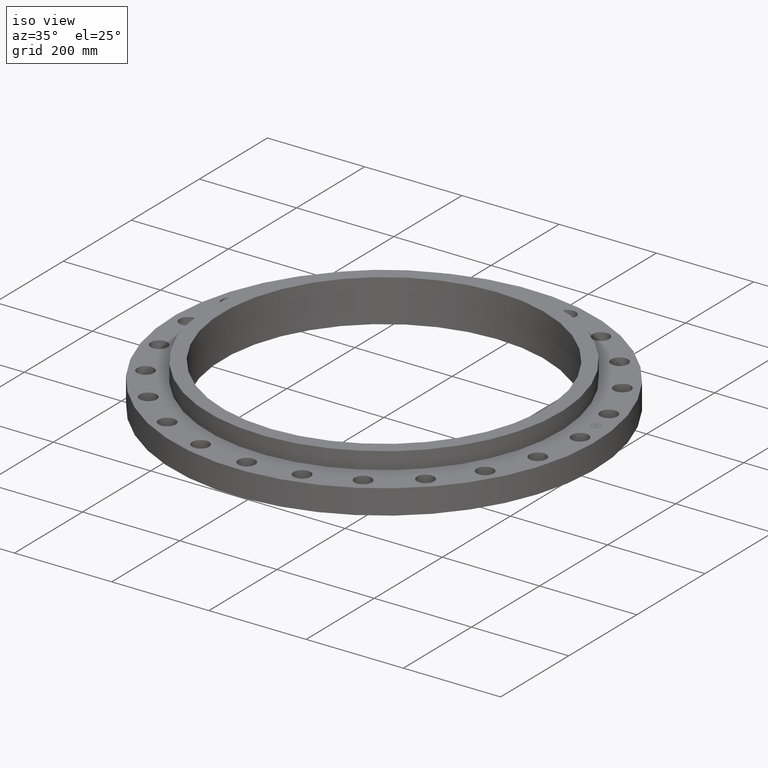
[diagram: clean part render]
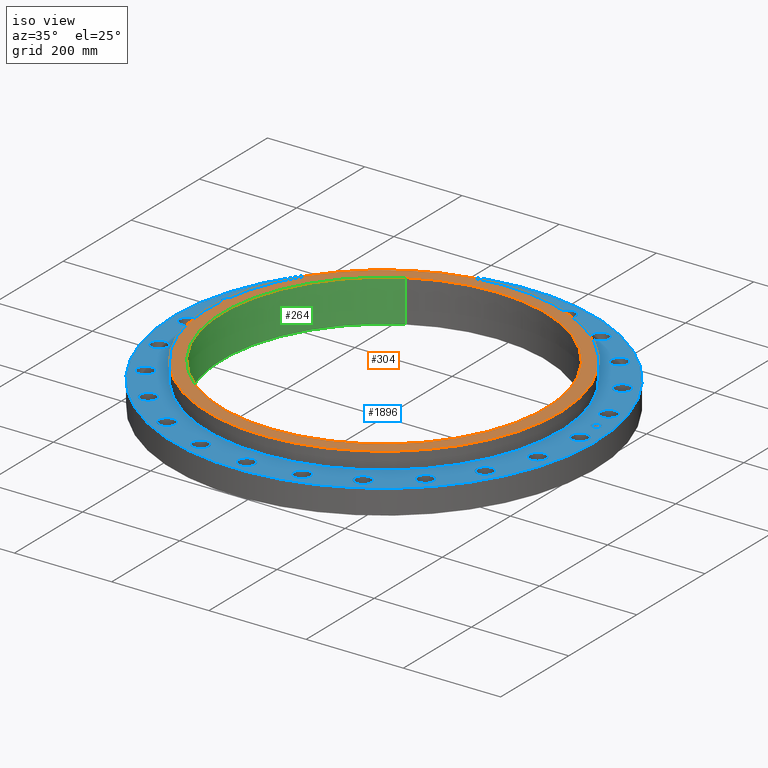
[diagram: same view with three faces highlighted in distinct colors, each labeled with its STEP entity id]
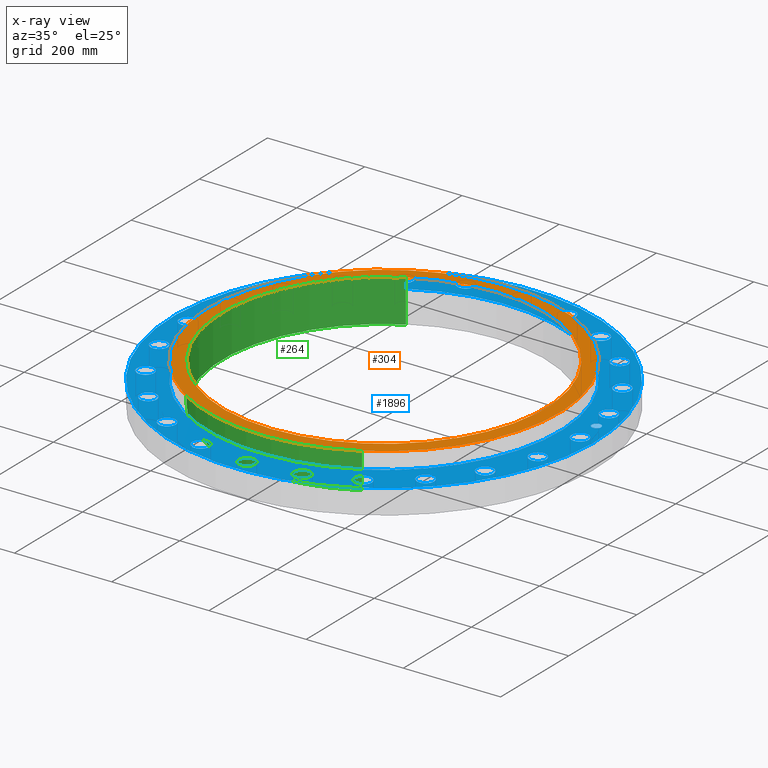
[diagram: x-ray of the same camera — body ghosted, the three highlighted faces saturated]
A machine part, iso view with three faces highlighted in distinct colors.
The next image is the same camera in x-ray (body ghosted, the three faces saturated) — at least one of them is partly hidden behind the body in this view.
Their STEP definitions:

[orange] entity #304 — the highlighted planar face has unit normal (0, 0, 1).
#255=AXIS2_PLACEMENT_3D('Circle Axis2P3D',#253,#254,$) ;
#267=AXIS2_PLACEMENT_3D('Circle Axis2P3D',#265,#266,$) ;
#280=AXIS2_PLACEMENT_3D('Plane Axis2P3D',#277,#278,#279) ;
#284=AXIS2_PLACEMENT_3D('Circle Axis2P3D',#282,#283,$) ;
#293=AXIS2_PLACEMENT_3D('Circle Axis2P3D',#291,#292,$) ;
#243=CARTESIAN_POINT('Vertex',(6.27807742805,-11.491943648,3.37500000001)) ;
#250=CARTESIAN_POINT('Vertex',(-6.27807742805,11.491943648,3.37500000001)) ;
#253=CARTESIAN_POINT('Axis2P3D Location',(0.,0.,3.37500000001)) ;
#265=CARTESIAN_POINT('Axis2P3D Location',(0.,0.,3.37500000001)) ;
#277=CARTESIAN_POINT('Axis2P3D Location',(0.,13.0950000001,3.37500000001)) ;
#282=CARTESIAN_POINT('Axis2P3D Location',(0.,0.,3.37500000001)) ;
#286=CARTESIAN_POINT('Vertex',(6.83181392514,-12.505551507,3.37500000001)) ;
#288=CARTESIAN_POINT('Vertex',(-6.83181392514,12.505551507,3.37500000001)) ;
#291=CARTESIAN_POINT('Axis2P3D Location',(0.,0.,3.37500000001)) ;
#254=DIRECTION('Axis2P3D Direction',(0.,0.,0.0393700787402)) ;
#266=DIRECTION('Axis2P3D Direction',(0.,0.,0.0393700787402)) ;
#278=DIRECTION('Axis2P3D Direction',(0.,0.,0.0393700787402)) ;
#279=DIRECTION('Axis2P3D XDirection',(0.0393700787402,0.,0.)) ;
#283=DIRECTION('Axis2P3D Direction',(0.,0.,0.0393700787402)) ;
#292=DIRECTION('Axis2P3D Direction',(0.,0.,0.0393700787402)) ;
#297=ORIENTED_EDGE('',*,*,#290,.T.) ;
#298=ORIENTED_EDGE('',*,*,#295,.T.) ;
#301=ORIENTED_EDGE('',*,*,#257,.F.) ;
#302=ORIENTED_EDGE('',*,*,#269,.F.) ;
#303=FACE_BOUND('',#300,.T.) ;
#304=ADVANCED_FACE('PartBody',(#299,#303),#281,.T.) ;
#256=CIRCLE('generated circle',#255,13.0950000001) ;
#268=CIRCLE('generated circle',#267,13.0950000001) ;
#285=CIRCLE('generated circle',#284,14.2500000001) ;
#294=CIRCLE('generated circle',#293,14.2500000001) ;
#257=EDGE_CURVE('',#251,#244,#256,.T.) ;
#269=EDGE_CURVE('',#244,#251,#268,.T.) ;
#290=EDGE_CURVE('',#287,#289,#285,.T.) ;
#295=EDGE_CURVE('',#289,#287,#294,.T.) ;
#296=EDGE_LOOP('',(#297,#298)) ;
#300=EDGE_LOOP('',(#301,#302)) ;
#299=FACE_OUTER_BOUND('',#296,.T.) ;
#281=PLANE('',#280) ;
#244=VERTEX_POINT('',#243) ;
#251=VERTEX_POINT('',#250) ;
#287=VERTEX_POINT('',#286) ;
#289=VERTEX_POINT('',#288) ;

[blue] entity #1896 — the highlighted planar face has unit normal (0, 0, 1).
#65=AXIS2_PLACEMENT_3D('Circle Axis2P3D',#63,#64,$) ;
#82=AXIS2_PLACEMENT_3D('Circle Axis2P3D',#80,#81,$) ;
#108=AXIS2_PLACEMENT_3D('Circle Axis2P3D',#106,#107,$) ;
#134=AXIS2_PLACEMENT_3D('Circle Axis2P3D',#132,#133,$) ;
#326=AXIS2_PLACEMENT_3D('Circle Axis2P3D',#324,#325,$) ;
#338=AXIS2_PLACEMENT_3D('Circle Axis2P3D',#336,#337,$) ;
#801=AXIS2_PLACEMENT_3D('Circle Axis2P3D',#799,#800,$) ;
#813=AXIS2_PLACEMENT_3D('Circle Axis2P3D',#811,#812,$) ;
#844=AXIS2_PLACEMENT_3D('Circle Axis2P3D',#842,#843,$) ;
#856=AXIS2_PLACEMENT_3D('Circle Axis2P3D',#854,#855,$) ;
#887=AXIS2_PLACEMENT_3D('Circle Axis2P3D',#885,#886,$) ;
#899=AXIS2_PLACEMENT_3D('Circle Axis2P3D',#897,#898,$) ;
#930=AXIS2_PLACEMENT_3D('Circle Axis2P3D',#928,#929,$) ;
#942=AXIS2_PLACEMENT_3D('Circle Axis2P3D',#940,#941,$) ;
#973=AXIS2_PLACEMENT_3D('Circle Axis2P3D',#971,#972,$) ;
#985=AXIS2_PLACEMENT_3D('Circle Axis2P3D',#983,#984,$) ;
#1016=AXIS2_PLACEMENT_3D('Circle Axis2P3D',#1014,#1015,$) ;
#1028=AXIS2_PLACEMENT_3D('Circle Axis2P3D',#1026,#1027,$) ;
#1059=AXIS2_PLACEMENT_3D('Circle Axis2P3D',#1057,#1058,$) ;
#1071=AXIS2_PLACEMENT_3D('Circle Axis2P3D',#1069,#1070,$) ;
#1102=AXIS2_PLACEMENT_3D('Circle Axis2P3D',#1100,#1101,$) ;
#1114=AXIS2_PLACEMENT_3D('Circle Axis2P3D',#1112,#1113,$) ;
#1145=AXIS2_PLACEMENT_3D('Circle Axis2P3D',#1143,#1144,$) ;
#1157=AXIS2_PLACEMENT_3D('Circle Axis2P3D',#1155,#1156,$) ;
#1188=AXIS2_PLACEMENT_3D('Circle Axis2P3D',#1186,#1187,$) ;
#1200=AXIS2_PLACEMENT_3D('Circle Axis2P3D',#1198,#1199,$) ;
#1231=AXIS2_PLACEMENT_3D('Circle Axis2P3D',#1229,#1230,$) ;
#1243=AXIS2_PLACEMENT_3D('Circle Axis2P3D',#1241,#1242,$) ;
#1274=AXIS2_PLACEMENT_3D('Circle Axis2P3D',#1272,#1273,$) ;
#1286=AXIS2_PLACEMENT_3D('Circle Axis2P3D',#1284,#1285,$) ;
#1317=AXIS2_PLACEMENT_3D('Circle Axis2P3D',#1315,#1316,$) ;
#1329=AXIS2_PLACEMENT_3D('Circle Axis2P3D',#1327,#1328,$) ;
#1360=AXIS2_PLACEMENT_3D('Circle Axis2P3D',#1358,#1359,$) ;
#1372=AXIS2_PLACEMENT_3D('Circle Axis2P3D',#1370,#1371,$) ;
#1403=AXIS2_PLACEMENT_3D('Circle Axis2P3D',#1401,#1402,$) ;
#1415=AXIS2_PLACEMENT_3D('Circle Axis2P3D',#1413,#1414,$) ;
#1446=AXIS2_PLACEMENT_3D('Circle Axis2P3D',#1444,#1445,$) ;
#1458=AXIS2_PLACEMENT_3D('Circle Axis2P3D',#1456,#1457,$) ;
#1489=AXIS2_PLACEMENT_3D('Circle Axis2P3D',#1487,#1488,$) ;
#1501=AXIS2_PLACEMENT_3D('Circle Axis2P3D',#1499,#1500,$) ;
#1532=AXIS2_PLACEMENT_3D('Circle Axis2P3D',#1530,#1531,$) ;
#1544=AXIS2_PLACEMENT_3D('Circle Axis2P3D',#1542,#1543,$) ;
#1575=AXIS2_PLACEMENT_3D('Circle Axis2P3D',#1573,#1574,$) ;
#1587=AXIS2_PLACEMENT_3D('Circle Axis2P3D',#1585,#1586,$) ;
#1618=AXIS2_PLACEMENT_3D('Circle Axis2P3D',#1616,#1617,$) ;
#1630=AXIS2_PLACEMENT_3D('Circle Axis2P3D',#1628,#1629,$) ;
#1661=AXIS2_PLACEMENT_3D('Circle Axis2P3D',#1659,#1660,$) ;
#1673=AXIS2_PLACEMENT_3D('Circle Axis2P3D',#1671,#1672,$) ;
#1704=AXIS2_PLACEMENT_3D('Circle Axis2P3D',#1702,#1703,$) ;
#1716=AXIS2_PLACEMENT_3D('Circle Axis2P3D',#1714,#1715,$) ;
#1747=AXIS2_PLACEMENT_3D('Circle Axis2P3D',#1745,#1746,$) ;
#1759=AXIS2_PLACEMENT_3D('Circle Axis2P3D',#1757,#1758,$) ;
#1772=AXIS2_PLACEMENT_3D('Plane Axis2P3D',#1769,#1770,#1771) ;
#1880=AXIS2_PLACEMENT_3D('Circle Axis2P3D',#1878,#1879,$) ;
#1889=AXIS2_PLACEMENT_3D('Circle Axis2P3D',#1887,#1888,$) ;
#46=CARTESIAN_POINT('Vertex',(15.2716619888,0.329605057792,2.00000000001)) ;
#60=CARTESIAN_POINT('Vertex',(16.4783380114,-0.329605057792,2.00000000001)) ;
#63=CARTESIAN_POINT('Axis2P3D Location',(15.8750000001,0.,2.00000000001)) ;
#80=CARTESIAN_POINT('Axis2P3D Location',(15.8750000001,0.,2.00000000001)) ;
#103=CARTESIAN_POINT('Vertex',(-8.21016234863,15.0286013724,2.00000000001)) ;
#106=CARTESIAN_POINT('Axis2P3D Location',(0.,0.,2.00000000001)) ;
#110=CARTESIAN_POINT('Vertex',(8.21016234863,-15.0286013724,2.00000000001)) ;
#132=CARTESIAN_POINT('Axis2P3D Location',(0.,0.,2.00000000001)) ;
#314=CARTESIAN_POINT('Vertex',(-6.83181392514,12.505551507,2.00000000001)) ;
#321=CARTESIAN_POINT('Vertex',(6.83181392514,-12.505551507,2.00000000001)) ;
#324=CARTESIAN_POINT('Axis2P3D Location',(0.,0.,2.00000000001)) ;
#336=CARTESIAN_POINT('Axis2P3D Location',(0.,0.,2.00000000001)) ;
#789=CARTESIAN_POINT('Vertex',(14.665984659,4.27097101086,2.00000000001)) ;
#796=CARTESIAN_POINT('Vertex',(16.0021603258,3.94653367118,2.00000000001)) ;
#799=CARTESIAN_POINT('Axis2P3D Location',(15.3340724924,4.10875234102,2.00000000001)) ;
#811=CARTESIAN_POINT('Axis2P3D Location',(15.3340724924,4.10875234102,2.00000000001)) ;
#832=CARTESIAN_POINT('Vertex',(13.0608447114,7.92127734764,2.00000000001)) ;
#839=CARTESIAN_POINT('Vertex',(14.4354618589,7.95372265242,2.00000000001)) ;
#842=CARTESIAN_POINT('Axis2P3D Location',(13.7481532851,7.93750000003,2.00000000001)) ;
#854=CARTESIAN_POINT('Axis2P3D Location',(13.7481532851,7.93750000003,2.00000000001)) ;
#875=CARTESIAN_POINT('Vertex',(10.5656297808,11.0317617237,2.00000000001)) ;
#882=CARTESIAN_POINT('Vertex',(11.885010522,11.418878579,2.00000000001)) ;
#885=CARTESIAN_POINT('Axis2P3D Location',(11.2253201514,11.2253201514,2.00000000001)) ;
#897=CARTESIAN_POINT('Axis2P3D Location',(11.2253201514,11.2253201514,2.00000000001)) ;
#918=CARTESIAN_POINT('Vertex',(7.35038464112,13.3904497692,2.00000000001)) ;
#925=CARTESIAN_POINT('Vertex',(8.52461535895,14.1058568011,2.00000000001)) ;
#928=CARTESIAN_POINT('Axis2P3D Location',(7.93750000003,13.7481532851,2.00000000001)) ;
#940=CARTESIAN_POINT('Axis2P3D Location',(7.93750000003,13.7481532851,2.00000000001)) ;
#961=CARTESIAN_POINT('Vertex',(3.63422293526,14.8366007916,2.00000000001)) ;
#968=CARTESIAN_POINT('Vertex',(4.58328174677,15.8315441932,2.00000000001)) ;
#971=CARTESIAN_POINT('Axis2P3D Location',(4.10875234102,15.3340724924,2.00000000001)) ;
#983=CARTESIAN_POINT('Axis2P3D Location',(4.10875234102,15.3340724924,2.00000000001)) ;
#1004=CARTESIAN_POINT('Vertex',(-0.329605057792,15.2716619888,2.00000000001)) ;
#1011=CARTESIAN_POINT('Vertex',(0.329605057792,16.4783380114,2.00000000001)) ;
#1014=CARTESIAN_POINT('Axis2P3D Location',(9.72063396827E-016,15.8750000001,2.00000000001)) ;
#1026=CARTESIAN_POINT('Axis2P3D Location',(9.72063396827E-016,15.8750000001,2.00000000001)) ;
#1047=CARTESIAN_POINT('Vertex',(-4.27097101086,14.665984659,2.00000000001)) ;
#1054=CARTESIAN_POINT('Vertex',(-3.94653367118,16.0021603258,2.00000000001)) ;
#1057=CARTESIAN_POINT('Axis2P3D Location',(-4.10875234102,15.3340724924,2.00000000001)) ;
#1069=CARTESIAN_POINT('Axis2P3D Location',(-4.10875234102,15.3340724924,2.00000000001)) ;
#1090=CARTESIAN_POINT('Vertex',(-7.92127734764,13.0608447114,2.00000000001)) ;
#1097=CARTESIAN_POINT('Vertex',(-7.95372265242,14.4354618589,2.00000000001)) ;
#1100=CARTESIAN_POINT('Axis2P3D Location',(-7.93750000003,13.7481532851,2.00000000001)) ;
#1112=CARTESIAN_POINT('Axis2P3D Location',(-7.93750000003,13.7481532851,2.00000000001)) ;
#1133=CARTESIAN_POINT('Vertex',(-11.0317617237,10.5656297808,2.00000000001)) ;
#1140=CARTESIAN_POINT('Vertex',(-11.418878579,11.885010522,2.00000000001)) ;
#1143=CARTESIAN_POINT('Axis2P3D Location',(-11.2253201514,11.2253201514,2.00000000001)) ;
#1155=CARTESIAN_POINT('Axis2P3D Location',(-11.2253201514,11.2253201514,2.00000000001)) ;
#1176=CARTESIAN_POINT('Vertex',(-13.3904497692,7.35038464112,2.00000000001)) ;
#1183=CARTESIAN_POINT('Vertex',(-14.1058568011,8.52461535895,2.00000000001)) ;
#1186=CARTESIAN_POINT('Axis2P3D Location',(-13.7481532851,7.93750000003,2.00000000001)) ;
#1198=CARTESIAN_POINT('Axis2P3D Location',(-13.7481532851,7.93750000003,2.00000000001)) ;
#1219=CARTESIAN_POINT('Vertex',(-14.8366007916,3.63422293526,2.00000000001)) ;
#1226=CARTESIAN_POINT('Vertex',(-15.8315441932,4.58328174677,2.00000000001)) ;
#1229=CARTESIAN_POINT('Axis2P3D Location',(-15.3340724924,4.10875234102,2.00000000001)) ;
#1241=CARTESIAN_POINT('Axis2P3D Location',(-15.3340724924,4.10875234102,2.00000000001)) ;
#1262=CARTESIAN_POINT('Vertex',(-15.2716619888,-0.329605057792,2.00000000001)) ;
#1269=CARTESIAN_POINT('Vertex',(-16.4783380114,0.329605057792,2.00000000001)) ;
#1272=CARTESIAN_POINT('Axis2P3D Location',(-15.8750000001,1.94412679365E-015,2.00000000001)) ;
#1284=CARTESIAN_POINT('Axis2P3D Location',(-15.8750000001,1.94412679365E-015,2.00000000001)) ;
#1305=CARTESIAN_POINT('Vertex',(-14.665984659,-4.27097101086,2.00000000001)) ;
#1312=CARTESIAN_POINT('Vertex',(-16.0021603258,-3.94653367118,2.00000000001)) ;
#1315=CARTESIAN_POINT('Axis2P3D Location',(-15.3340724924,-4.10875234102,2.00000000001)) ;
#1327=CARTESIAN_POINT('Axis2P3D Location',(-15.3340724924,-4.10875234102,2.00000000001)) ;
#1348=CARTESIAN_POINT('Vertex',(-13.0608447114,-7.92127734764,2.00000000001)) ;
#1355=CARTESIAN_POINT('Vertex',(-14.4354618589,-7.95372265242,2.00000000001)) ;
#1358=CARTESIAN_POINT('Axis2P3D Location',(-13.7481532851,-7.93750000003,2.00000000001)) ;
#1370=CARTESIAN_POINT('Axis2P3D Location',(-13.7481532851,-7.93750000003,2.00000000001)) ;
#1391=CARTESIAN_POINT('Vertex',(-10.5656297808,-11.0317617237,2.00000000001)) ;
#1398=CARTESIAN_POINT('Vertex',(-11.885010522,-11.418878579,2.00000000001)) ;
#1401=CARTESIAN_POINT('Axis2P3D Location',(-11.2253201514,-11.2253201514,2.00000000001)) ;
#1413=CARTESIAN_POINT('Axis2P3D Location',(-11.2253201514,-11.2253201514,2.00000000001)) ;
#1434=CARTESIAN_POINT('Vertex',(-7.35038464112,-13.3904497692,2.00000000001)) ;
#1441=CARTESIAN_POINT('Vertex',(-8.52461535895,-14.1058568011,2.00000000001)) ;
#1444=CARTESIAN_POINT('Axis2P3D Location',(-7.93750000003,-13.7481532851,2.00000000001)) ;
#1456=CARTESIAN_POINT('Axis2P3D Location',(-7.93750000003,-13.7481532851,2.00000000001)) ;
#1477=CARTESIAN_POINT('Vertex',(-3.63422293526,-14.8366007916,2.00000000001)) ;
#1484=CARTESIAN_POINT('Vertex',(-4.58328174677,-15.8315441932,2.00000000001)) ;
#1487=CARTESIAN_POINT('Axis2P3D Location',(-4.10875234102,-15.3340724924,2.00000000001)) ;
#1499=CARTESIAN_POINT('Axis2P3D Location',(-4.10875234102,-15.3340724924,2.00000000001)) ;
#1520=CARTESIAN_POINT('Vertex',(0.329605057792,-15.2716619888,2.00000000001)) ;
#1527=CARTESIAN_POINT('Vertex',(-0.329605057792,-16.4783380114,2.00000000001)) ;
#1530=CARTESIAN_POINT('Axis2P3D Location',(-6.78260314072E-016,-15.8750000001,2.00000000001)) ;
#1542=CARTESIAN_POINT('Axis2P3D Location',(-6.78260314072E-016,-15.8750000001,2.00000000001)) ;
#1563=CARTESIAN_POINT('Vertex',(4.27097101086,-14.665984659,2.00000000001)) ;
#1570=CARTESIAN_POINT('Vertex',(3.94653367118,-16.0021603258,2.00000000001)) ;
#1573=CARTESIAN_POINT('Axis2P3D Location',(4.10875234102,-15.3340724924,2.00000000001)) ;
#1585=CARTESIAN_POINT('Axis2P3D Location',(4.10875234102,-15.3340724924,2.00000000001)) ;
#1606=CARTESIAN_POINT('Vertex',(7.92127734764,-13.0608447114,2.00000000001)) ;
#1613=CARTESIAN_POINT('Vertex',(7.95372265242,-14.4354618589,2.00000000001)) ;
#1616=CARTESIAN_POINT('Axis2P3D Location',(7.93750000003,-13.7481532851,2.00000000001)) ;
#1628=CARTESIAN_POINT('Axis2P3D Location',(7.93750000003,-13.7481532851,2.00000000001)) ;
#1649=CARTESIAN_POINT('Vertex',(11.0317617237,-10.5656297808,2.00000000001)) ;
#1656=CARTESIAN_POINT('Vertex',(11.418878579,-11.885010522,2.00000000001)) ;
#1659=CARTESIAN_POINT('Axis2P3D Location',(11.2253201514,-11.2253201514,2.00000000001)) ;
#1671=CARTESIAN_POINT('Axis2P3D Location',(11.2253201514,-11.2253201514,2.00000000001)) ;
#1692=CARTESIAN_POINT('Vertex',(13.3904497692,-7.35038464112,2.00000000001)) ;
#1699=CARTESIAN_POINT('Vertex',(14.1058568011,-8.52461535895,2.00000000001)) ;
#1702=CARTESIAN_POINT('Axis2P3D Location',(13.7481532851,-7.93750000003,2.00000000001)) ;
#1714=CARTESIAN_POINT('Axis2P3D Location',(13.7481532851,-7.93750000003,2.00000000001)) ;
#1735=CARTESIAN_POINT('Vertex',(14.8366007916,-3.63422293526,2.00000000001)) ;
#1742=CARTESIAN_POINT('Vertex',(15.8315441932,-4.58328174677,2.00000000001)) ;
#1745=CARTESIAN_POINT('Axis2P3D Location',(15.3340724924,-4.10875234102,2.00000000001)) ;
#1757=CARTESIAN_POINT('Axis2P3D Location',(15.3340724924,-4.10875234102,2.00000000001)) ;
#1769=CARTESIAN_POINT('Axis2P3D Location',(0.,14.2500000001,2.00000000001)) ;
#1878=CARTESIAN_POINT('Axis2P3D Location',(15.7391871744,2.0721033015,2.00000000001)) ;
#1882=CARTESIAN_POINT('Vertex',(15.6902398523,2.44389512452,2.00000000001)) ;
#1884=CARTESIAN_POINT('Vertex',(15.7881344965,1.70031147848,2.00000000001)) ;
#1887=CARTESIAN_POINT('Axis2P3D Location',(15.7391871744,2.0721033015,2.00000000001)) ;
#64=DIRECTION('Axis2P3D Direction',(0.,-0.,-0.0393700787402)) ;
#81=DIRECTION('Axis2P3D Direction',(0.,-0.,-0.0393700787402)) ;
#107=DIRECTION('Axis2P3D Direction',(0.,0.,0.0393700787402)) ;
#133=DIRECTION('Axis2P3D Direction',(0.,0.,0.0393700787402)) ;
#325=DIRECTION('Axis2P3D Direction',(0.,0.,0.0393700787402)) ;
#337=DIRECTION('Axis2P3D Direction',(0.,0.,0.0393700787402)) ;
#800=DIRECTION('Axis2P3D Direction',(0.,0.,-0.0393700787402)) ;
#812=DIRECTION('Axis2P3D Direction',(0.,0.,-0.0393700787402)) ;
#843=DIRECTION('Axis2P3D Direction',(0.,0.,-0.0393700787402)) ;
#855=DIRECTION('Axis2P3D Direction',(0.,0.,-0.0393700787402)) ;
#886=DIRECTION('Axis2P3D Direction',(0.,0.,-0.0393700787402)) ;
#898=DIRECTION('Axis2P3D Direction',(0.,0.,-0.0393700787402)) ;
#929=DIRECTION('Axis2P3D Direction',(0.,0.,-0.0393700787402)) ;
#941=DIRECTION('Axis2P3D Direction',(0.,0.,-0.0393700787402)) ;
#972=DIRECTION('Axis2P3D Direction',(0.,0.,-0.0393700787402)) ;
#984=DIRECTION('Axis2P3D Direction',(0.,0.,-0.0393700787402)) ;
#1015=DIRECTION('Axis2P3D Direction',(0.,0.,-0.0393700787402)) ;
#1027=DIRECTION('Axis2P3D Direction',(0.,0.,-0.0393700787402)) ;
#1058=DIRECTION('Axis2P3D Direction',(0.,0.,-0.0393700787402)) ;
#1070=DIRECTION('Axis2P3D Direction',(0.,0.,-0.0393700787402)) ;
#1101=DIRECTION('Axis2P3D Direction',(0.,0.,-0.0393700787402)) ;
#1113=DIRECTION('Axis2P3D Direction',(0.,0.,-0.0393700787402)) ;
#1144=DIRECTION('Axis2P3D Direction',(0.,0.,-0.0393700787402)) ;
#1156=DIRECTION('Axis2P3D Direction',(0.,0.,-0.0393700787402)) ;
#1187=DIRECTION('Axis2P3D Direction',(0.,0.,-0.0393700787402)) ;
#1199=DIRECTION('Axis2P3D Direction',(0.,0.,-0.0393700787402)) ;
#1230=DIRECTION('Axis2P3D Direction',(0.,0.,-0.0393700787402)) ;
#1242=DIRECTION('Axis2P3D Direction',(0.,0.,-0.0393700787402)) ;
#1273=DIRECTION('Axis2P3D Direction',(0.,0.,-0.0393700787402)) ;
#1285=DIRECTION('Axis2P3D Direction',(0.,0.,-0.0393700787402)) ;
#1316=DIRECTION('Axis2P3D Direction',(-0.,0.,-0.0393700787402)) ;
#1328=DIRECTION('Axis2P3D Direction',(-0.,0.,-0.0393700787402)) ;
#1359=DIRECTION('Axis2P3D Direction',(-0.,0.,-0.0393700787402)) ;
#1371=DIRECTION('Axis2P3D Direction',(-0.,0.,-0.0393700787402)) ;
#1402=DIRECTION('Axis2P3D Direction',(-0.,0.,-0.0393700787402)) ;
#1414=DIRECTION('Axis2P3D Direction',(-0.,0.,-0.0393700787402)) ;
#1445=DIRECTION('Axis2P3D Direction',(-0.,0.,-0.0393700787402)) ;
#1457=DIRECTION('Axis2P3D Direction',(-0.,0.,-0.0393700787402)) ;
#1488=DIRECTION('Axis2P3D Direction',(-0.,0.,-0.0393700787402)) ;
#1500=DIRECTION('Axis2P3D Direction',(-0.,0.,-0.0393700787402)) ;
#1531=DIRECTION('Axis2P3D Direction',(-0.,0.,-0.0393700787402)) ;
#1543=DIRECTION('Axis2P3D Direction',(-0.,0.,-0.0393700787402)) ;
#1574=DIRECTION('Axis2P3D Direction',(0.,-0.,-0.0393700787402)) ;
#1586=DIRECTION('Axis2P3D Direction',(0.,-0.,-0.0393700787402)) ;
#1617=DIRECTION('Axis2P3D Direction',(0.,-0.,-0.0393700787402)) ;
#1629=DIRECTION('Axis2P3D Direction',(0.,-0.,-0.0393700787402)) ;
#1660=DIRECTION('Axis2P3D Direction',(0.,-0.,-0.0393700787402)) ;
#1672=DIRECTION('Axis2P3D Direction',(0.,-0.,-0.0393700787402)) ;
#1703=DIRECTION('Axis2P3D Direction',(0.,-0.,-0.0393700787402)) ;
#1715=DIRECTION('Axis2P3D Direction',(0.,-0.,-0.0393700787402)) ;
#1746=DIRECTION('Axis2P3D Direction',(0.,-0.,-0.0393700787402)) ;
#1758=DIRECTION('Axis2P3D Direction',(0.,-0.,-0.0393700787402)) ;
#1770=DIRECTION('Axis2P3D Direction',(0.,0.,0.0393700787402)) ;
#1771=DIRECTION('Axis2P3D XDirection',(0.0393700787402,0.,0.)) ;
#1879=DIRECTION('Axis2P3D Direction',(0.,0.,0.0393700787402)) ;
#1888=DIRECTION('Axis2P3D Direction',(0.,0.,0.0393700787402)) ;
#1775=ORIENTED_EDGE('',*,*,#112,.T.) ;
#1776=ORIENTED_EDGE('',*,*,#136,.T.) ;
#1779=ORIENTED_EDGE('',*,*,#84,.F.) ;
#1780=ORIENTED_EDGE('',*,*,#67,.F.) ;
#1783=ORIENTED_EDGE('',*,*,#340,.F.) ;
#1784=ORIENTED_EDGE('',*,*,#328,.F.) ;
#1787=ORIENTED_EDGE('',*,*,#803,.F.) ;
#1788=ORIENTED_EDGE('',*,*,#815,.F.) ;
#1791=ORIENTED_EDGE('',*,*,#846,.F.) ;
#1792=ORIENTED_EDGE('',*,*,#858,.F.) ;
#1795=ORIENTED_EDGE('',*,*,#889,.F.) ;
#1796=ORIENTED_EDGE('',*,*,#901,.F.) ;
#1799=ORIENTED_EDGE('',*,*,#932,.F.) ;
#1800=ORIENTED_EDGE('',*,*,#944,.F.) ;
#1803=ORIENTED_EDGE('',*,*,#975,.F.) ;
#1804=ORIENTED_EDGE('',*,*,#987,.F.) ;
#1807=ORIENTED_EDGE('',*,*,#1018,.F.) ;
#1808=ORIENTED_EDGE('',*,*,#1030,.F.) ;
#1811=ORIENTED_EDGE('',*,*,#1061,.F.) ;
#1812=ORIENTED_EDGE('',*,*,#1073,.F.) ;
#1815=ORIENTED_EDGE('',*,*,#1104,.F.) ;
#1816=ORIENTED_EDGE('',*,*,#1116,.F.) ;
#1819=ORIENTED_EDGE('',*,*,#1147,.F.) ;
#1820=ORIENTED_EDGE('',*,*,#1159,.F.) ;
#1823=ORIENTED_EDGE('',*,*,#1190,.F.) ;
#1824=ORIENTED_EDGE('',*,*,#1202,.F.) ;
#1827=ORIENTED_EDGE('',*,*,#1233,.F.) ;
#1828=ORIENTED_EDGE('',*,*,#1245,.F.) ;
#1831=ORIENTED_EDGE('',*,*,#1276,.F.) ;
#1832=ORIENTED_EDGE('',*,*,#1288,.F.) ;
#1835=ORIENTED_EDGE('',*,*,#1319,.F.) ;
#1836=ORIENTED_EDGE('',*,*,#1331,.F.) ;
#1839=ORIENTED_EDGE('',*,*,#1362,.F.) ;
#1840=ORIENTED_EDGE('',*,*,#1374,.F.) ;
#1843=ORIENTED_EDGE('',*,*,#1405,.F.) ;
#1844=ORIENTED_EDGE('',*,*,#1417,.F.) ;
#1847=ORIENTED_EDGE('',*,*,#1448,.F.) ;
#1848=ORIENTED_EDGE('',*,*,#1460,.F.) ;
#1851=ORIENTED_EDGE('',*,*,#1491,.F.) ;
#1852=ORIENTED_EDGE('',*,*,#1503,.F.) ;
#1855=ORIENTED_EDGE('',*,*,#1534,.F.) ;
#1856=ORIENTED_EDGE('',*,*,#1546,.F.) ;
#1859=ORIENTED_EDGE('',*,*,#1577,.F.) ;
#1860=ORIENTED_EDGE('',*,*,#1589,.F.) ;
#1863=ORIENTED_EDGE('',*,*,#1620,.F.) ;
#1864=ORIENTED_EDGE('',*,*,#1632,.F.) ;
#1867=ORIENTED_EDGE('',*,*,#1663,.F.) ;
#1868=ORIENTED_EDGE('',*,*,#1675,.F.) ;
#1871=ORIENTED_EDGE('',*,*,#1706,.F.) ;
#1872=ORIENTED_EDGE('',*,*,#1718,.F.) ;
#1875=ORIENTED_EDGE('',*,*,#1749,.F.) ;
#1876=ORIENTED_EDGE('',*,*,#1761,.F.) ;
#1893=ORIENTED_EDGE('',*,*,#1886,.F.) ;
#1894=ORIENTED_EDGE('',*,*,#1891,.F.) ;
#1781=FACE_BOUND('',#1778,.T.) ;
#1785=FACE_BOUND('',#1782,.T.) ;
#1789=FACE_BOUND('',#1786,.T.) ;
#1793=FACE_BOUND('',#1790,.T.) ;
#1797=FACE_BOUND('',#1794,.T.) ;
#1801=FACE_BOUND('',#1798,.T.) ;
#1805=FACE_BOUND('',#1802,.T.) ;
#1809=FACE_BOUND('',#1806,.T.) ;
#1813=FACE_BOUND('',#1810,.T.) ;
#1817=FACE_BOUND('',#1814,.T.) ;
#1821=FACE_BOUND('',#1818,.T.) ;
#1825=FACE_BOUND('',#1822,.T.) ;
#1829=FACE_BOUND('',#1826,.T.) ;
#1833=FACE_BOUND('',#1830,.T.) ;
#1837=FACE_BOUND('',#1834,.T.) ;
#1841=FACE_BOUND('',#1838,.T.) ;
#1845=FACE_BOUND('',#1842,.T.) ;
#1849=FACE_BOUND('',#1846,.T.) ;
#1853=FACE_BOUND('',#1850,.T.) ;
#1857=FACE_BOUND('',#1854,.T.) ;
#1861=FACE_BOUND('',#1858,.T.) ;
#1865=FACE_BOUND('',#1862,.T.) ;
#1869=FACE_BOUND('',#1866,.T.) ;
#1873=FACE_BOUND('',#1870,.T.) ;
#1877=FACE_BOUND('',#1874,.T.) ;
#1895=FACE_BOUND('',#1892,.T.) ;
#1896=ADVANCED_FACE('PartBody',(#1777,#1781,#1785,#1789,#1793,#1797,#1801,#1805,#1809,#1813,#1817,#1821,#1825,#1829,#1833,#1837,#1841,#1845,#1849,#1853,#1857,#1861,#1865,#1869,#1873,#1877,#1895),#1773,.T.) ;
#66=CIRCLE('generated circle',#65,0.687500000003) ;
#83=CIRCLE('generated circle',#82,0.687500000003) ;
#109=CIRCLE('generated circle',#108,17.1250000001) ;
#135=CIRCLE('generated circle',#134,17.1250000001) ;
#327=CIRCLE('generated circle',#326,14.2500000001) ;
#339=CIRCLE('generated circle',#338,14.2500000001) ;
#802=CIRCLE('generated circle',#801,0.687500000003) ;
#814=CIRCLE('generated circle',#813,0.687500000003) ;
#845=CIRCLE('generated circle',#844,0.687500000003) ;
#857=CIRCLE('generated circle',#856,0.687500000003) ;
#888=CIRCLE('generated circle',#887,0.687500000003) ;
#900=CIRCLE('generated circle',#899,0.687500000003) ;
#931=CIRCLE('generated circle',#930,0.687500000003) ;
#943=CIRCLE('generated circle',#942,0.687500000003) ;
#974=CIRCLE('generated circle',#973,0.687500000003) ;
#986=CIRCLE('generated circle',#985,0.687500000003) ;
#1017=CIRCLE('generated circle',#1016,0.687500000003) ;
#1029=CIRCLE('generated circle',#1028,0.687500000003) ;
#1060=CIRCLE('generated circle',#1059,0.687500000003) ;
#1072=CIRCLE('generated circle',#1071,0.687500000003) ;
#1103=CIRCLE('generated circle',#1102,0.687500000003) ;
#1115=CIRCLE('generated circle',#1114,0.687500000003) ;
#1146=CIRCLE('generated circle',#1145,0.687500000003) ;
#1158=CIRCLE('generated circle',#1157,0.687500000003) ;
#1189=CIRCLE('generated circle',#1188,0.687500000003) ;
#1201=CIRCLE('generated circle',#1200,0.687500000003) ;
#1232=CIRCLE('generated circle',#1231,0.687500000003) ;
#1244=CIRCLE('generated circle',#1243,0.687500000003) ;
#1275=CIRCLE('generated circle',#1274,0.687500000003) ;
#1287=CIRCLE('generated circle',#1286,0.687500000003) ;
#1318=CIRCLE('generated circle',#1317,0.687500000003) ;
#1330=CIRCLE('generated circle',#1329,0.687500000003) ;
#1361=CIRCLE('generated circle',#1360,0.687500000003) ;
#1373=CIRCLE('generated circle',#1372,0.687500000003) ;
#1404=CIRCLE('generated circle',#1403,0.687500000003) ;
#1416=CIRCLE('generated circle',#1415,0.687500000003) ;
#1447=CIRCLE('generated circle',#1446,0.687500000003) ;
#1459=CIRCLE('generated circle',#1458,0.687500000003) ;
#1490=CIRCLE('generated circle',#1489,0.687500000003) ;
#1502=CIRCLE('generated circle',#1501,0.687500000003) ;
#1533=CIRCLE('generated circle',#1532,0.687500000003) ;
#1545=CIRCLE('generated circle',#1544,0.687500000003) ;
#1576=CIRCLE('generated circle',#1575,0.687500000003) ;
#1588=CIRCLE('generated circle',#1587,0.687500000003) ;
#1619=CIRCLE('generated circle',#1618,0.687500000003) ;
#1631=CIRCLE('generated circle',#1630,0.687500000003) ;
#1662=CIRCLE('generated circle',#1661,0.687500000003) ;
#1674=CIRCLE('generated circle',#1673,0.687500000003) ;
#1705=CIRCLE('generated circle',#1704,0.687500000003) ;
#1717=CIRCLE('generated circle',#1716,0.687500000003) ;
#1748=CIRCLE('generated circle',#1747,0.687500000003) ;
#1760=CIRCLE('generated circle',#1759,0.687500000003) ;
#1881=CIRCLE('generated circle',#1880,0.375000000001) ;
#1890=CIRCLE('generated circle',#1889,0.375000000001) ;
#67=EDGE_CURVE('',#61,#47,#66,.F.) ;
#84=EDGE_CURVE('',#47,#61,#83,.F.) ;
#112=EDGE_CURVE('',#111,#104,#109,.T.) ;
#136=EDGE_CURVE('',#104,#111,#135,.T.) ;
#328=EDGE_CURVE('',#322,#315,#327,.T.) ;
#340=EDGE_CURVE('',#315,#322,#339,.T.) ;
#803=EDGE_CURVE('',#797,#790,#802,.F.) ;
#815=EDGE_CURVE('',#790,#797,#814,.F.) ;
#846=EDGE_CURVE('',#840,#833,#845,.F.) ;
#858=EDGE_CURVE('',#833,#840,#857,.F.) ;
#889=EDGE_CURVE('',#883,#876,#888,.F.) ;
#901=EDGE_CURVE('',#876,#883,#900,.F.) ;
#932=EDGE_CURVE('',#926,#919,#931,.F.) ;
#944=EDGE_CURVE('',#919,#926,#943,.F.) ;
#975=EDGE_CURVE('',#969,#962,#974,.F.) ;
#987=EDGE_CURVE('',#962,#969,#986,.F.) ;
#1018=EDGE_CURVE('',#1012,#1005,#1017,.F.) ;
#1030=EDGE_CURVE('',#1005,#1012,#1029,.F.) ;
#1061=EDGE_CURVE('',#1055,#1048,#1060,.F.) ;
#1073=EDGE_CURVE('',#1048,#1055,#1072,.F.) ;
#1104=EDGE_CURVE('',#1098,#1091,#1103,.F.) ;
#1116=EDGE_CURVE('',#1091,#1098,#1115,.F.) ;
#1147=EDGE_CURVE('',#1141,#1134,#1146,.F.) ;
#1159=EDGE_CURVE('',#1134,#1141,#1158,.F.) ;
#1190=EDGE_CURVE('',#1184,#1177,#1189,.F.) ;
#1202=EDGE_CURVE('',#1177,#1184,#1201,.F.) ;
#1233=EDGE_CURVE('',#1227,#1220,#1232,.F.) ;
#1245=EDGE_CURVE('',#1220,#1227,#1244,.F.) ;
#1276=EDGE_CURVE('',#1270,#1263,#1275,.F.) ;
#1288=EDGE_CURVE('',#1263,#1270,#1287,.F.) ;
#1319=EDGE_CURVE('',#1313,#1306,#1318,.F.) ;
#1331=EDGE_CURVE('',#1306,#1313,#1330,.F.) ;
#1362=EDGE_CURVE('',#1356,#1349,#1361,.F.) ;
#1374=EDGE_CURVE('',#1349,#1356,#1373,.F.) ;
#1405=EDGE_CURVE('',#1399,#1392,#1404,.F.) ;
#1417=EDGE_CURVE('',#1392,#1399,#1416,.F.) ;
#1448=EDGE_CURVE('',#1442,#1435,#1447,.F.) ;
#1460=EDGE_CURVE('',#1435,#1442,#1459,.F.) ;
#1491=EDGE_CURVE('',#1485,#1478,#1490,.F.) ;
#1503=EDGE_CURVE('',#1478,#1485,#1502,.F.) ;
#1534=EDGE_CURVE('',#1528,#1521,#1533,.F.) ;
#1546=EDGE_CURVE('',#1521,#1528,#1545,.F.) ;
#1577=EDGE_CURVE('',#1571,#1564,#1576,.F.) ;
#1589=EDGE_CURVE('',#1564,#1571,#1588,.F.) ;
#1620=EDGE_CURVE('',#1614,#1607,#1619,.F.) ;
#1632=EDGE_CURVE('',#1607,#1614,#1631,.F.) ;
#1663=EDGE_CURVE('',#1657,#1650,#1662,.F.) ;
#1675=EDGE_CURVE('',#1650,#1657,#1674,.F.) ;
#1706=EDGE_CURVE('',#1700,#1693,#1705,.F.) ;
#1718=EDGE_CURVE('',#1693,#1700,#1717,.F.) ;
#1749=EDGE_CURVE('',#1743,#1736,#1748,.F.) ;
#1761=EDGE_CURVE('',#1736,#1743,#1760,.F.) ;
#1886=EDGE_CURVE('',#1883,#1885,#1881,.T.) ;
#1891=EDGE_CURVE('',#1885,#1883,#1890,.T.) ;
#1774=EDGE_LOOP('',(#1775,#1776)) ;
#1778=EDGE_LOOP('',(#1779,#1780)) ;
#1782=EDGE_LOOP('',(#1783,#1784)) ;
#1786=EDGE_LOOP('',(#1787,#1788)) ;
#1790=EDGE_LOOP('',(#1791,#1792)) ;
#1794=EDGE_LOOP('',(#1795,#1796)) ;
#1798=EDGE_LOOP('',(#1799,#1800)) ;
#1802=EDGE_LOOP('',(#1803,#1804)) ;
#1806=EDGE_LOOP('',(#1807,#1808)) ;
#1810=EDGE_LOOP('',(#1811,#1812)) ;
#1814=EDGE_LOOP('',(#1815,#1816)) ;
#1818=EDGE_LOOP('',(#1819,#1820)) ;
#1822=EDGE_LOOP('',(#1823,#1824)) ;
#1826=EDGE_LOOP('',(#1827,#1828)) ;
#1830=EDGE_LOOP('',(#1831,#1832)) ;
#1834=EDGE_LOOP('',(#1835,#1836)) ;
#1838=EDGE_LOOP('',(#1839,#1840)) ;
#1842=EDGE_LOOP('',(#1843,#1844)) ;
#1846=EDGE_LOOP('',(#1847,#1848)) ;
#1850=EDGE_LOOP('',(#1851,#1852)) ;
#1854=EDGE_LOOP('',(#1855,#1856)) ;
#1858=EDGE_LOOP('',(#1859,#1860)) ;
#1862=EDGE_LOOP('',(#1863,#1864)) ;
#1866=EDGE_LOOP('',(#1867,#1868)) ;
#1870=EDGE_LOOP('',(#1871,#1872)) ;
#1874=EDGE_LOOP('',(#1875,#1876)) ;
#1892=EDGE_LOOP('',(#1893,#1894)) ;
#1777=FACE_OUTER_BOUND('',#1774,.T.) ;
#1773=PLANE('',#1772) ;
#47=VERTEX_POINT('',#46) ;
#61=VERTEX_POINT('',#60) ;
#104=VERTEX_POINT('',#103) ;
#111=VERTEX_POINT('',#110) ;
#315=VERTEX_POINT('',#314) ;
#322=VERTEX_POINT('',#321) ;
#790=VERTEX_POINT('',#789) ;
#797=VERTEX_POINT('',#796) ;
#833=VERTEX_POINT('',#832) ;
#840=VERTEX_POINT('',#839) ;
#876=VERTEX_POINT('',#875) ;
#883=VERTEX_POINT('',#882) ;
#919=VERTEX_POINT('',#918) ;
#926=VERTEX_POINT('',#925) ;
#962=VERTEX_POINT('',#961) ;
#969=VERTEX_POINT('',#968) ;
#1005=VERTEX_POINT('',#1004) ;
#1012=VERTEX_POINT('',#1011) ;
#1048=VERTEX_POINT('',#1047) ;
#1055=VERTEX_POINT('',#1054) ;
#1091=VERTEX_POINT('',#1090) ;
#1098=VERTEX_POINT('',#1097) ;
#1134=VERTEX_POINT('',#1133) ;
#1141=VERTEX_POINT('',#1140) ;
#1177=VERTEX_POINT('',#1176) ;
#1184=VERTEX_POINT('',#1183) ;
#1220=VERTEX_POINT('',#1219) ;
#1227=VERTEX_POINT('',#1226) ;
#1263=VERTEX_POINT('',#1262) ;
#1270=VERTEX_POINT('',#1269) ;
#1306=VERTEX_POINT('',#1305) ;
#1313=VERTEX_POINT('',#1312) ;
#1349=VERTEX_POINT('',#1348) ;
#1356=VERTEX_POINT('',#1355) ;
#1392=VERTEX_POINT('',#1391) ;
#1399=VERTEX_POINT('',#1398) ;
#1435=VERTEX_POINT('',#1434) ;
#1442=VERTEX_POINT('',#1441) ;
#1478=VERTEX_POINT('',#1477) ;
#1485=VERTEX_POINT('',#1484) ;
#1521=VERTEX_POINT('',#1520) ;
#1528=VERTEX_POINT('',#1527) ;
#1564=VERTEX_POINT('',#1563) ;
#1571=VERTEX_POINT('',#1570) ;
#1607=VERTEX_POINT('',#1606) ;
#1614=VERTEX_POINT('',#1613) ;
#1650=VERTEX_POINT('',#1649) ;
#1657=VERTEX_POINT('',#1656) ;
#1693=VERTEX_POINT('',#1692) ;
#1700=VERTEX_POINT('',#1699) ;
#1736=VERTEX_POINT('',#1735) ;
#1743=VERTEX_POINT('',#1742) ;
#1883=VERTEX_POINT('',#1882) ;
#1885=VERTEX_POINT('',#1884) ;

[green] entity #264 — the highlighted cylindrical surface (partial cylindrical patch) has radius 332.613 mm, axis along (0, 0, 1).
#226=AXIS2_PLACEMENT_3D('Circle Axis2P3D',#224,#225,$) ;
#237=AXIS2_PLACEMENT_3D('Cylinder Axis2P3D',#234,#235,#236) ;
#255=AXIS2_PLACEMENT_3D('Circle Axis2P3D',#253,#254,$) ;
#219=CARTESIAN_POINT('Vertex',(6.27807742805,-11.491943648,-0.0625000000003)) ;
#221=CARTESIAN_POINT('Vertex',(-6.27807742805,11.491943648,-0.0625000000003)) ;
#224=CARTESIAN_POINT('Axis2P3D Location',(0.,0.,-0.0625000000002)) ;
#234=CARTESIAN_POINT('Axis2P3D Location',(0.,0.,1.65625000001)) ;
#239=CARTESIAN_POINT('Line Origine',(6.27807742805,-11.491943648,1.65625000001)) ;
#243=CARTESIAN_POINT('Vertex',(6.27807742805,-11.491943648,3.37500000001)) ;
#246=CARTESIAN_POINT('Line Origine',(-6.27807742805,11.491943648,1.65625000001)) ;
#250=CARTESIAN_POINT('Vertex',(-6.27807742805,11.491943648,3.37500000001)) ;
#253=CARTESIAN_POINT('Axis2P3D Location',(0.,0.,3.37500000001)) ;
#225=DIRECTION('Axis2P3D Direction',(0.,0.,0.0393700787402)) ;
#235=DIRECTION('Axis2P3D Direction',(0.,0.,0.0393700787402)) ;
#236=DIRECTION('Axis2P3D XDirection',(0.0188750212049,-0.0345504945626,0.)) ;
#240=DIRECTION('Vector Direction',(0.,0.,0.0393700787402)) ;
#247=DIRECTION('Vector Direction',(0.,0.,0.0393700787402)) ;
#254=DIRECTION('Axis2P3D Direction',(0.,0.,0.0393700787402)) ;
#241=VECTOR('Line Direction',#240,0.0393700787402) ;
#248=VECTOR('Line Direction',#247,0.0393700787402) ;
#259=ORIENTED_EDGE('',*,*,#245,.T.) ;
#260=ORIENTED_EDGE('',*,*,#228,.F.) ;
#261=ORIENTED_EDGE('',*,*,#252,.F.) ;
#262=ORIENTED_EDGE('',*,*,#257,.T.) ;
#264=ADVANCED_FACE('PartBody',(#263),#238,.F.) ;
#227=CIRCLE('generated circle',#226,13.0950000001) ;
#256=CIRCLE('generated circle',#255,13.0950000001) ;
#238=CYLINDRICAL_SURFACE('generated cylinder',#237,13.0950000001) ;
#228=EDGE_CURVE('',#222,#220,#227,.T.) ;
#245=EDGE_CURVE('',#244,#220,#242,.F.) ;
#252=EDGE_CURVE('',#251,#222,#249,.F.) ;
#257=EDGE_CURVE('',#251,#244,#256,.T.) ;
#258=EDGE_LOOP('',(#259,#260,#261,#262)) ;
#263=FACE_OUTER_BOUND('',#258,.T.) ;
#242=LINE('Line',#239,#241) ;
#249=LINE('Line',#246,#248) ;
#220=VERTEX_POINT('',#219) ;
#222=VERTEX_POINT('',#221) ;
#244=VERTEX_POINT('',#243) ;
#251=VERTEX_POINT('',#250) ;